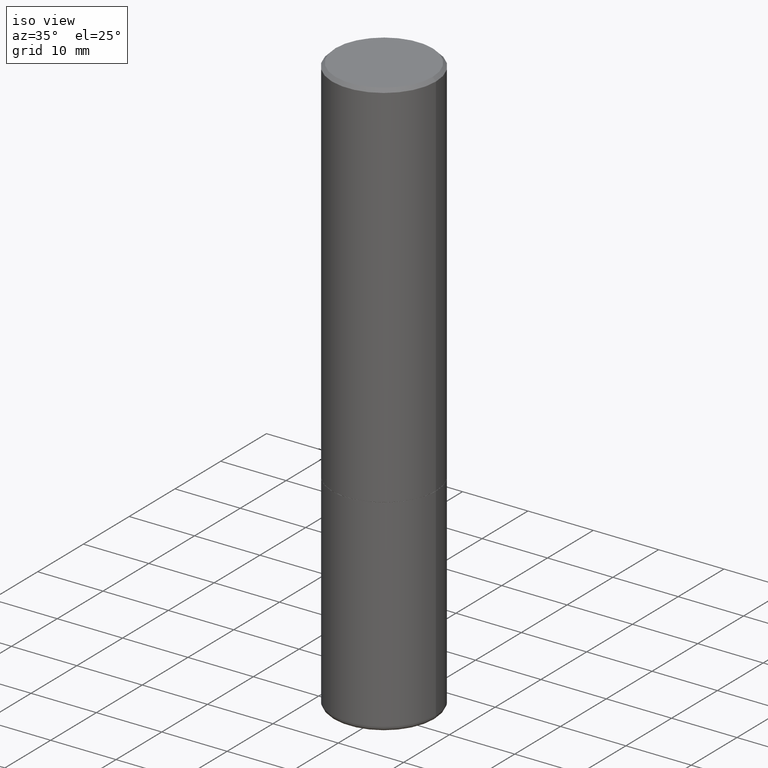
[diagram: clean part render]
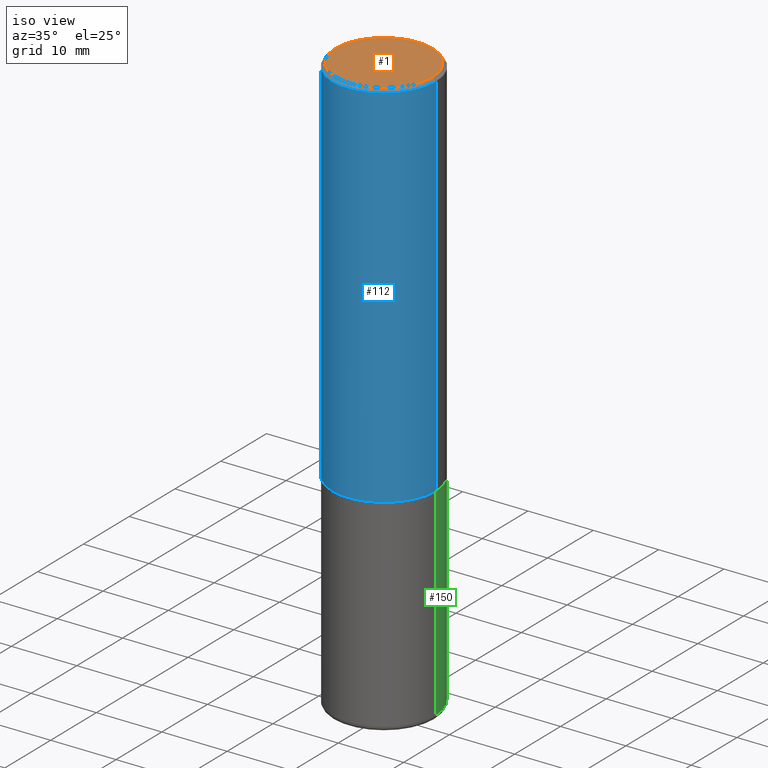
[diagram: same view with three faces highlighted in distinct colors, each labeled with its STEP entity id]
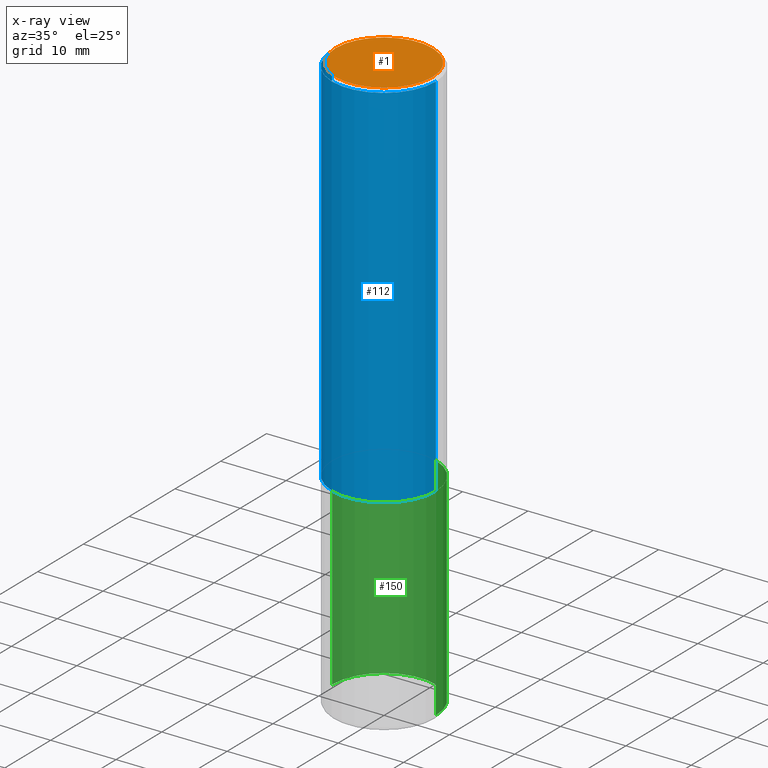
[diagram: x-ray of the same camera — body ghosted, the three highlighted faces saturated]
A machine part, iso view with three faces highlighted in distinct colors.
The next image is the same camera in x-ray (body ghosted, the three faces saturated) — at least one of them is partly hidden behind the body in this view.
Their STEP definitions:

[orange] entity #1 — the highlighted planar face has unit normal (0, -0, -1).
#1 = ADVANCED_FACE ( 'NONE', ( #88 ), #117, .F. ) ;
#2 = CARTESIAN_POINT ( 'NONE',  ( -1.043851414335219820E-46, 1.490343170380447200E-32, 4.268512490100411279E-18 ) ) ;
#18 = ORIENTED_EDGE ( 'NONE', *, *, #30, .T. ) ;
#30 = EDGE_CURVE ( 'NONE', #208, #423, #263, .T. ) ;
#68 = EDGE_LOOP ( 'NONE', ( #325, #18 ) ) ;
#88 = FACE_OUTER_BOUND ( 'NONE', #68, .T. ) ;
#108 = CARTESIAN_POINT ( 'NONE',  ( -1.043851414335219820E-46, 1.490343170380447200E-32, 4.268512490100411279E-18 ) ) ;
#110 = DIRECTION ( 'NONE',  ( 1.000000000000000000, -6.982962677686266711E-15, 4.876067333457692840E-29 ) ) ;
#117 = PLANE ( 'NONE',  #296 ) ;
#131 = CARTESIAN_POINT ( 'NONE',  ( 0.2924999999999998157, -2.110215457714318748E-15, 4.268512490114932791E-18 ) ) ;
#186 = DIRECTION ( 'NONE',  ( -1.000000000000000000, 6.982962677686265922E-15, -4.876176775795935793E-29 ) ) ;
#208 = VERTEX_POINT ( 'NONE', #131 ) ;
#239 = DIRECTION ( 'NONE',  ( -2.445468806185136597E-29, 3.491481338843145583E-15, 1.000000000000000000 ) ) ;
#263 = CIRCLE ( 'NONE', #407, 0.2924999999999998157 ) ;
#296 = AXIS2_PLACEMENT_3D ( 'NONE', #360, #392, #186 ) ;
#325 = ORIENTED_EDGE ( 'NONE', *, *, #408, .T. ) ;
#345 = DIRECTION ( 'NONE',  ( 1.000000000000000000, -6.982962677686266711E-15, 4.876067333457692840E-29 ) ) ;
#350 = CIRCLE ( 'NONE', #357, 0.2924999999999998157 ) ;
#357 = AXIS2_PLACEMENT_3D ( 'NONE', #2, #385, #110 ) ;
#360 = CARTESIAN_POINT ( 'NONE',  ( 2.042516583223231356E-15, 0.2924999999999998157, -1.019124035366569212E-15 ) ) ;
#374 = CARTESIAN_POINT ( 'NONE',  ( -0.2924999999999998157, 2.077431396611662611E-15, 4.268512490086005323E-18 ) ) ;
#385 = DIRECTION ( 'NONE',  ( -2.445468806185136597E-29, 3.491481338843145583E-15, 1.000000000000000000 ) ) ;
#392 = DIRECTION ( 'NONE',  ( 2.438088387897960049E-29, -3.491481338843145188E-15, -1.000000000000000000 ) ) ;
#407 = AXIS2_PLACEMENT_3D ( 'NONE', #108, #239, #345 ) ;
#408 = EDGE_CURVE ( 'NONE', #423, #208, #350, .T. ) ;
#423 = VERTEX_POINT ( 'NONE', #374 ) ;

[blue] entity #112 — the highlighted cylindrical surface (partial cylindrical patch) has radius 7.9375 mm, axis along (-0, 0, 1).
#3 = FACE_OUTER_BOUND ( 'NONE', #45, .T. ) ;
#6 = DIRECTION ( 'NONE',  ( 1.000000000000000000, -6.982962677686269077E-15, 0.000000000000000000 ) ) ;
#13 = ORIENTED_EDGE ( 'NONE', *, *, #210, .F. ) ;
#23 = DIRECTION ( 'NONE',  ( -2.445468806185136597E-29, 3.491481338843145583E-15, 1.000000000000000000 ) ) ;
#25 = DIRECTION ( 'NONE',  ( -2.445468806185136597E-29, 3.491481338843145583E-15, 1.000000000000000000 ) ) ;
#28 = DIRECTION ( 'NONE',  ( 1.000000000000000000, -6.982962677686266711E-15, 4.876176775795935232E-29 ) ) ;
#33 = DIRECTION ( 'NONE',  ( -2.445468806185136597E-29, 3.491481338843145583E-15, 1.000000000000000000 ) ) ;
#34 = LINE ( 'NONE', #168, #214 ) ;
#36 = CARTESIAN_POINT ( 'NONE',  ( -0.3125000000000000000, -1.740639529667232739E-15, -2.248999999999999222 ) ) ;
#45 = EDGE_LOOP ( 'NONE', ( #103, #433, #368, #13 ) ) ;
#50 = VERTEX_POINT ( 'NONE', #75 ) ;
#75 = CARTESIAN_POINT ( 'NONE',  ( 0.3124999999999998335, -2.213735251080465334E-15, -0.02000000000000002123 ) ) ;
#79 = EDGE_CURVE ( 'NONE', #278, #240, #34, .T. ) ;
#87 = AXIS2_PLACEMENT_3D ( 'NONE', #190, #25, #28 ) ;
#95 = CARTESIAN_POINT ( 'NONE',  ( 0.3124999999999998890, -2.182175836776957558E-15, 1.523805242436229235E-29 ) ) ;
#103 = ORIENTED_EDGE ( 'NONE', *, *, #79, .F. ) ;
#112 = ADVANCED_FACE ( 'NONE', ( #3 ), #416, .T. ) ;
#153 = AXIS2_PLACEMENT_3D ( 'NONE', #267, #23, #157 ) ;
#157 = DIRECTION ( 'NONE',  ( 1.000000000000000000, -6.982962677686265133E-15, 0.000000000000000000 ) ) ;
#168 = CARTESIAN_POINT ( 'NONE',  ( -0.3124999999999998890, 2.220446049250312292E-15, -1.537167215704657391E-29 ) ) ;
#183 = VERTEX_POINT ( 'NONE', #192 ) ;
#190 = CARTESIAN_POINT ( 'NONE',  ( 0.000000000000000000, 0.000000000000000000, 0.000000000000000000 ) ) ;
#192 = CARTESIAN_POINT ( 'NONE',  ( 0.3125000000000000000, -1.003451736783519063E-14, -2.248999999999999222 ) ) ;
#195 = CIRCLE ( 'NONE', #441, 0.3125000000000000000 ) ;
#207 = VECTOR ( 'NONE', #369, 39.37007874015748143 ) ;
#210 = EDGE_CURVE ( 'NONE', #240, #50, #349, .T. ) ;
#214 = VECTOR ( 'NONE', #307, 39.37007874015748143 ) ;
#240 = VERTEX_POINT ( 'NONE', #442 ) ;
#243 = EDGE_CURVE ( 'NONE', #183, #50, #339, .T. ) ;
#267 = CARTESIAN_POINT ( 'NONE',  ( 4.890937612370278413E-31, -6.982962677686297772E-17, -0.02000000000000002123 ) ) ;
#278 = VERTEX_POINT ( 'NONE', #36 ) ;
#307 = DIRECTION ( 'NONE',  ( -2.445468806185136877E-29, 3.491481338843145188E-15, 1.000000000000000000 ) ) ;
#317 = EDGE_CURVE ( 'NONE', #278, #183, #195, .T. ) ;
#339 = LINE ( 'NONE', #95, #207 ) ;
#341 = CARTESIAN_POINT ( 'NONE',  ( 5.499859345110370619E-29, -7.852341531058232286E-15, -2.248999999999999222 ) ) ;
#349 = CIRCLE ( 'NONE', #153, 0.3124999999999998335 ) ;
#368 = ORIENTED_EDGE ( 'NONE', *, *, #243, .T. ) ;
#369 = DIRECTION ( 'NONE',  ( -2.445468806185136877E-29, 3.491481338843145188E-15, 1.000000000000000000 ) ) ;
#416 = CYLINDRICAL_SURFACE ( 'NONE', #87, 0.3124999999999998890 ) ;
#433 = ORIENTED_EDGE ( 'NONE', *, *, #317, .T. ) ;
#441 = AXIS2_PLACEMENT_3D ( 'NONE', #341, #33, #6 ) ;
#442 = CARTESIAN_POINT ( 'NONE',  ( -0.3124999999999998335, 2.112346210000093866E-15, -0.02000000000000002123 ) ) ;

[green] entity #150 — the highlighted cylindrical surface (partial cylindrical patch) has radius 7.9375 mm, axis along (-0, 0, 1).
#7 = CIRCLE ( 'NONE', #107, 0.3125000000000000000 ) ;
#24 = EDGE_CURVE ( 'NONE', #73, #148, #282, .T. ) ;
#40 = LINE ( 'NONE', #176, #137 ) ;
#41 = AXIS2_PLACEMENT_3D ( 'NONE', #130, #197, #437 ) ;
#56 = EDGE_CURVE ( 'NONE', #148, #175, #7, .T. ) ;
#57 = CARTESIAN_POINT ( 'NONE',  ( -0.3125000000000000000, -7.765262354148530218E-15, -3.470041113957361922 ) ) ;
#72 = DIRECTION ( 'NONE',  ( -2.445468806185136877E-29, 3.491481338843145188E-15, 1.000000000000000000 ) ) ;
#73 = VERTEX_POINT ( 'NONE', #272 ) ;
#102 = DIRECTION ( 'NONE',  ( 1.000000000000000000, -6.982962677686265133E-15, 0.000000000000000000 ) ) ;
#107 = AXIS2_PLACEMENT_3D ( 'NONE', #410, #134, #102 ) ;
#119 = ORIENTED_EDGE ( 'NONE', *, *, #24, .F. ) ;
#129 = CYLINDRICAL_SURFACE ( 'NONE', #41, 0.3125000000000000000 ) ;
#130 = CARTESIAN_POINT ( 'NONE',  ( 0.000000000000000000, 0.000000000000000000, 0.000000000000000000 ) ) ;
#134 = DIRECTION ( 'NONE',  ( -2.445468806185136597E-29, 3.491481338843145583E-15, 1.000000000000000000 ) ) ;
#137 = VECTOR ( 'NONE', #72, 39.37007874015748143 ) ;
#140 = DIRECTION ( 'NONE',  ( -2.445468806185136877E-29, 3.491481338843145188E-15, 1.000000000000000000 ) ) ;
#142 = DIRECTION ( 'NONE',  ( 1.000000000000000000, -6.982962677686269077E-15, 0.000000000000000000 ) ) ;
#148 = VERTEX_POINT ( 'NONE', #162 ) ;
#150 = ADVANCED_FACE ( 'NONE', ( #264 ), #129, .T. ) ;
#156 = ORIENTED_EDGE ( 'NONE', *, *, #56, .F. ) ;
#162 = CARTESIAN_POINT ( 'NONE',  ( 0.3125000000000000000, -1.003800884917403364E-14, -2.249999999999999556 ) ) ;
#175 = VERTEX_POINT ( 'NONE', #402 ) ;
#176 = CARTESIAN_POINT ( 'NONE',  ( -0.3125000000000000000, 2.220446049250313081E-15, -1.537167215704658232E-29 ) ) ;
#180 = AXIS2_PLACEMENT_3D ( 'NONE', #387, #279, #142 ) ;
#197 = DIRECTION ( 'NONE',  ( -2.445468806185136597E-29, 3.491481338843145583E-15, 1.000000000000000000 ) ) ;
#227 = CIRCLE ( 'NONE', #180, 0.3125000000000000000 ) ;
#253 = VERTEX_POINT ( 'NONE', #57 ) ;
#264 = FACE_OUTER_BOUND ( 'NONE', #381, .T. ) ;
#272 = CARTESIAN_POINT ( 'NONE',  ( 0.3125000000000000000, -1.429775963117756807E-14, -3.470041113957361922 ) ) ;
#279 = DIRECTION ( 'NONE',  ( -2.445468806185136597E-29, 3.491481338843145583E-15, 1.000000000000000000 ) ) ;
#282 = LINE ( 'NONE', #312, #310 ) ;
#302 = EDGE_CURVE ( 'NONE', #73, #253, #227, .T. ) ;
#310 = VECTOR ( 'NONE', #140, 39.37007874015748143 ) ;
#312 = CARTESIAN_POINT ( 'NONE',  ( 0.3125000000000000000, -2.182175836776958347E-15, 1.523805242436230075E-29 ) ) ;
#338 = ORIENTED_EDGE ( 'NONE', *, *, #391, .T. ) ;
#381 = EDGE_LOOP ( 'NONE', ( #389, #338, #156, #119 ) ) ;
#387 = CARTESIAN_POINT ( 'NONE',  ( 8.485877300362652309E-29, -1.211558379440060973E-14, -3.470041113957361922 ) ) ;
#389 = ORIENTED_EDGE ( 'NONE', *, *, #302, .T. ) ;
#391 = EDGE_CURVE ( 'NONE', #253, #175, #40, .T. ) ;
#402 = CARTESIAN_POINT ( 'NONE',  ( -0.3125000000000000000, -7.765262354148530218E-15, -2.249999999999999556 ) ) ;
#410 = CARTESIAN_POINT ( 'NONE',  ( 5.502304813916556222E-29, -7.855833012397075293E-15, -2.249999999999999556 ) ) ;
#437 = DIRECTION ( 'NONE',  ( 1.000000000000000000, -6.982962677686266711E-15, 4.876176775795936353E-29 ) ) ;